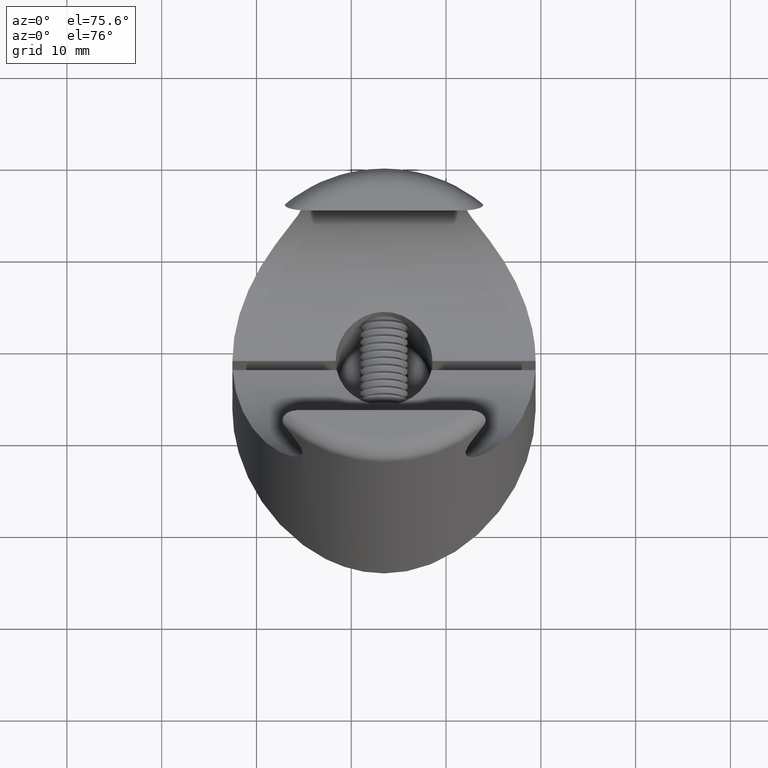
[diagram: clean part render]
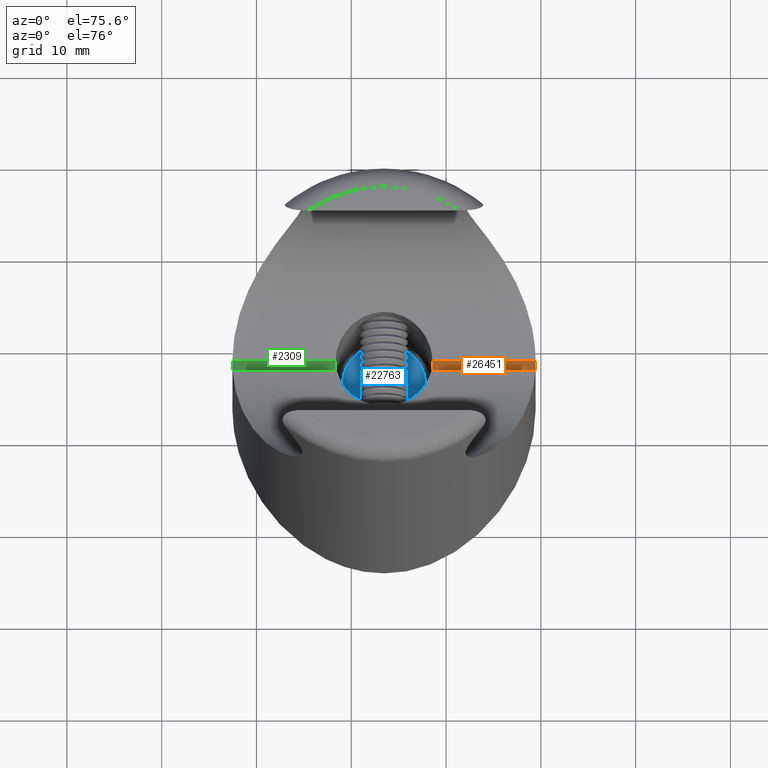
[diagram: same view with three faces highlighted in distinct colors, each labeled with its STEP entity id]
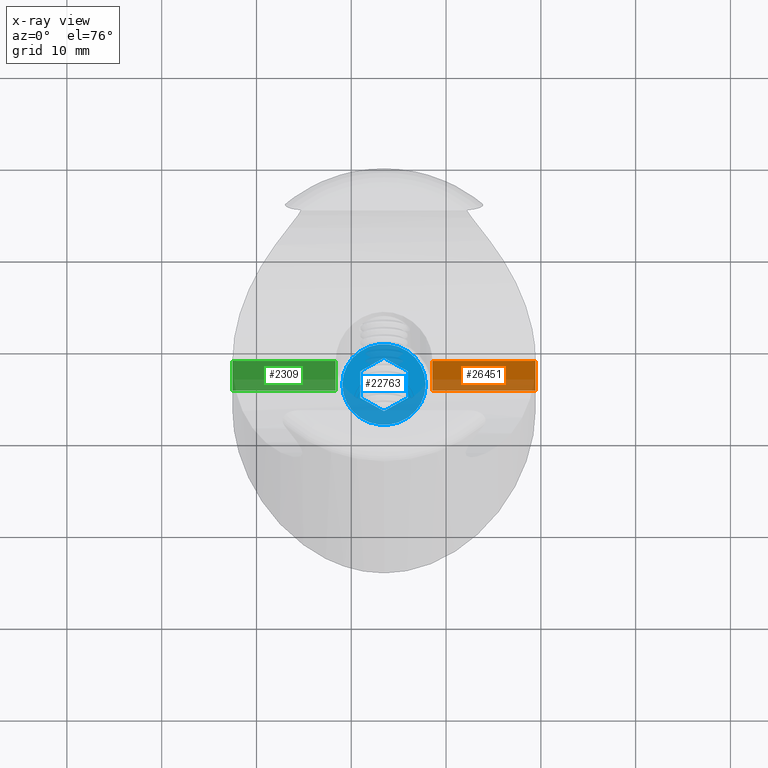
[diagram: x-ray of the same camera — body ghosted, the three highlighted faces saturated]
A machine part, auxiliary view with three faces highlighted in distinct colors.
The next image is the same camera in x-ray (body ghosted, the three faces saturated) — at least one of them is partly hidden behind the body in this view.
Their STEP definitions:

[orange] entity #26451 — the highlighted planar face has unit normal (0, 1, 0).
#6 = EDGE_CURVE ( 'NONE', #3753, #14614, #18441, .T. ) ;
#33 = LINE ( 'NONE', #17516, #10179 ) ;
#141 = ORIENTED_EDGE ( 'NONE', *, *, #8673, .F. ) ;
#1521 = CARTESIAN_POINT ( 'NONE',  ( 15.99999999999999645, -0.000000000000000000, 1.000000000000003997 ) ) ;
#1592 = CARTESIAN_POINT ( 'NONE',  ( 5.099999999999999645, 0.000000000000000000, 35.17686999952736926 ) ) ;
#3660 = PLANE ( 'NONE',  #5719 ) ;
#3753 = VERTEX_POINT ( 'NONE', #22838 ) ;
#5489 = DIRECTION ( 'NONE',  ( 0.000000000000000000, -0.000000000000000000, 1.000000000000000000 ) ) ;
#5719 = AXIS2_PLACEMENT_3D ( 'NONE', #9739, #25213, #5489 ) ;
#5809 = ORIENTED_EDGE ( 'NONE', *, *, #6, .T. ) ;
#7865 = DIRECTION ( 'NONE',  ( -1.000000000000000000, 0.000000000000000000, 0.000000000000000000 ) ) ;
#8673 = EDGE_CURVE ( 'NONE', #3753, #20892, #23262, .T. ) ;
#8890 = CARTESIAN_POINT ( 'NONE',  ( 16.00000000000000000, -1.653273178848926867E-15, 13.50000000000000000 ) ) ;
#9739 = CARTESIAN_POINT ( 'NONE',  ( -22.57528195423315864, 0.000000000000000000, 0.000000000000000000 ) ) ;
#10179 = VECTOR ( 'NONE', #11578, 1000.000000000000000 ) ;
#11256 = EDGE_CURVE ( 'NONE', #17349, #14614, #23586, .T. ) ;
#11578 = DIRECTION ( 'NONE',  ( -0.000000000000000000, -0.000000000000000000, -1.000000000000000000 ) ) ;
#13994 = CARTESIAN_POINT ( 'NONE',  ( 5.099999999999999645, 0.000000000000000000, 1.000000000000003997 ) ) ;
#14145 = VECTOR ( 'NONE', #7865, 1000.000000000000000 ) ;
#14614 = VERTEX_POINT ( 'NONE', #13994 ) ;
#17258 = ORIENTED_EDGE ( 'NONE', *, *, #18876, .F. ) ;
#17349 = VERTEX_POINT ( 'NONE', #23944 ) ;
#17499 = VECTOR ( 'NONE', #25328, 1000.000000000000000 ) ;
#17516 = CARTESIAN_POINT ( 'NONE',  ( 16.00000000000000000, 0.000000000000000000, 35.00000000000000000 ) ) ;
#18441 = LINE ( 'NONE', #1592, #25173 ) ;
#18876 = EDGE_CURVE ( 'NONE', #20892, #17349, #33, .T. ) ;
#18902 = DIRECTION ( 'NONE',  ( -0.000000000000000000, -0.000000000000000000, -1.000000000000000000 ) ) ;
#20892 = VERTEX_POINT ( 'NONE', #8890 ) ;
#20912 = CARTESIAN_POINT ( 'NONE',  ( -16.00000000000000000, -1.653273178848926867E-15, 13.50000000000000000 ) ) ;
#22838 = CARTESIAN_POINT ( 'NONE',  ( 5.099999999999999645, -1.653273178848926867E-15, 13.50000000000000000 ) ) ;
#23262 = LINE ( 'NONE', #20912, #17499 ) ;
#23586 = LINE ( 'NONE', #1521, #14145 ) ;
#23944 = CARTESIAN_POINT ( 'NONE',  ( 16.00000000000000000, 0.000000000000000000, 1.000000000000000888 ) ) ;
#24416 = EDGE_LOOP ( 'NONE', ( #141, #5809, #27735, #17258 ) ) ;
#24826 = FACE_OUTER_BOUND ( 'NONE', #24416, .T. ) ;
#25173 = VECTOR ( 'NONE', #18902, 1000.000000000000000 ) ;
#25213 = DIRECTION ( 'NONE',  ( -0.000000000000000000, 1.000000000000000000, 0.000000000000000000 ) ) ;
#25328 = DIRECTION ( 'NONE',  ( 1.000000000000000000, -0.000000000000000000, -0.000000000000000000 ) ) ;
#26451 = ADVANCED_FACE ( 'NONE', ( #24826 ), #3660, .F. ) ;
#27735 = ORIENTED_EDGE ( 'NONE', *, *, #11256, .F. ) ;

[blue] entity #22763 — the highlighted planar face has unit normal (0, 0, 1).
#403 = DIRECTION ( 'NONE',  ( 0.000000000000000000, 0.4999999999999986677, -0.8660254037844393737 ) ) ;
#854 = EDGE_CURVE ( 'NONE', #9620, #18089, #25799, .T. ) ;
#934 = CARTESIAN_POINT ( 'NONE',  ( 0.000000000000000000, -1.449149175665963796, 2.510000000000002007 ) ) ;
#1315 = CARTESIAN_POINT ( 'NONE',  ( -0.000000000000000000, -2.898298351331926703, 4.119968255444916849E-15 ) ) ;
#1348 = ORIENTED_EDGE ( 'NONE', *, *, #13102, .F. ) ;
#3104 = ORIENTED_EDGE ( 'NONE', *, *, #19167, .T. ) ;
#3443 = CARTESIAN_POINT ( 'NONE',  ( 0.000000000000000000, 2.898298351331914269, -4.119968255444916849E-15 ) ) ;
#3527 = CARTESIAN_POINT ( 'NONE',  ( 0.000000000000000000, -1.449149175665963796, 2.510000000000002007 ) ) ;
#3747 = DIRECTION ( 'NONE',  ( -0.000000000000000000, -0.5000000000000009992, -0.8660254037844380415 ) ) ;
#4084 = CARTESIAN_POINT ( 'NONE',  ( -0.000000000000000000, -1.449149175665970013, -2.509999999999997566 ) ) ;
#4346 = VECTOR ( 'NONE', #17593, 1000.000000000000227 ) ;
#4712 = ORIENTED_EDGE ( 'NONE', *, *, #26790, .F. ) ;
#5265 = DIRECTION ( 'NONE',  ( 0.000000000000000000, -0.5000000000000016653, -0.8660254037844377084 ) ) ;
#5276 = DIRECTION ( 'NONE',  ( 0.000000000000000000, 1.000000000000000000, -1.346696353449645192E-15 ) ) ;
#6291 = ORIENTED_EDGE ( 'NONE', *, *, #854, .F. ) ;
#6662 = EDGE_LOOP ( 'NONE', ( #16240, #3104 ) ) ;
#6829 = CIRCLE ( 'NONE', #16018, 4.400000000000000355 ) ;
#7099 = ORIENTED_EDGE ( 'NONE', *, *, #23076, .T. ) ;
#7414 = LINE ( 'NONE', #14359, #13475 ) ;
#8260 = DIRECTION ( 'NONE',  ( 0.000000000000000000, 0.000000000000000000, 1.000000000000000000 ) ) ;
#8362 = CARTESIAN_POINT ( 'NONE',  ( 0.000000000000000000, 0.000000000000000000, 4.400000000000000355 ) ) ;
#9102 = ORIENTED_EDGE ( 'NONE', *, *, #27167, .T. ) ;
#9620 = VERTEX_POINT ( 'NONE', #3527 ) ;
#9771 = VERTEX_POINT ( 'NONE', #4084 ) ;
#10618 = VECTOR ( 'NONE', #13674, 1000.000000000000000 ) ;
#11503 = CARTESIAN_POINT ( 'NONE',  ( 0.000000000000000000, 1.449149175665949363, -2.510000000000001119 ) ) ;
#12006 = CARTESIAN_POINT ( 'NONE',  ( 0.000000000000000000, 2.898298351331914269, -4.119968255444916849E-15 ) ) ;
#12025 = AXIS2_PLACEMENT_3D ( 'NONE', #24058, #19626, #13290 ) ;
#12442 = CARTESIAN_POINT ( 'NONE',  ( 0.000000000000000000, 5.755839955992559655E-16, -4.400000000000000355 ) ) ;
#12977 = DIRECTION ( 'NONE',  ( -1.000000000000000000, -0.000000000000000000, -0.000000000000000000 ) ) ;
#13102 = EDGE_CURVE ( 'NONE', #18060, #22949, #19453, .T. ) ;
#13287 = LINE ( 'NONE', #23747, #25783 ) ;
#13290 = DIRECTION ( 'NONE',  ( -0.000000000000000000, 0.000000000000000000, 1.000000000000000000 ) ) ;
#13475 = VECTOR ( 'NONE', #3747, 1000.000000000000000 ) ;
#13674 = DIRECTION ( 'NONE',  ( -0.000000000000000000, -1.000000000000000000, 1.197063425288573942E-15 ) ) ;
#14359 = CARTESIAN_POINT ( 'NONE',  ( 0.000000000000000000, -1.449149175665963796, 2.510000000000002007 ) ) ;
#15003 = CARTESIAN_POINT ( 'NONE',  ( 0.000000000000000000, 1.449149175665949363, -2.510000000000001119 ) ) ;
#15405 = VECTOR ( 'NONE', #5265, 1000.000000000000000 ) ;
#16018 = AXIS2_PLACEMENT_3D ( 'NONE', #19234, #12977, #8260 ) ;
#16240 = ORIENTED_EDGE ( 'NONE', *, *, #23218, .T. ) ;
#16689 = VERTEX_POINT ( 'NONE', #12442 ) ;
#17533 = FACE_OUTER_BOUND ( 'NONE', #6662, .T. ) ;
#17593 = DIRECTION ( 'NONE',  ( 0.000000000000000000, -0.4999999999999987232, 0.8660254037844392627 ) ) ;
#18051 = VECTOR ( 'NONE', #5276, 1000.000000000000000 ) ;
#18060 = VERTEX_POINT ( 'NONE', #12006 ) ;
#18089 = VERTEX_POINT ( 'NONE', #23979 ) ;
#19167 = EDGE_CURVE ( 'NONE', #16689, #27135, #6829, .T. ) ;
#19234 = CARTESIAN_POINT ( 'NONE',  ( 0.000000000000000000, 0.000000000000000000, 0.000000000000000000 ) ) ;
#19453 = LINE ( 'NONE', #26703, #15405 ) ;
#19626 = DIRECTION ( 'NONE',  ( -1.000000000000000000, 0.000000000000000000, -0.000000000000000000 ) ) ;
#21064 = EDGE_CURVE ( 'NONE', #18060, #18089, #21283, .T. ) ;
#21283 = LINE ( 'NONE', #3443, #4346 ) ;
#21511 = CARTESIAN_POINT ( 'NONE',  ( 0.000000000000000000, 0.000000000000000000, 0.000000000000000000 ) ) ;
#21699 = DIRECTION ( 'NONE',  ( -1.000000000000000000, -0.000000000000000000, -0.000000000000000000 ) ) ;
#22450 = LINE ( 'NONE', #15003, #10618 ) ;
#22763 = ADVANCED_FACE ( 'NONE', ( #24961, #17533 ), #26310, .T. ) ;
#22949 = VERTEX_POINT ( 'NONE', #11503 ) ;
#23076 = EDGE_CURVE ( 'NONE', #9620, #27808, #7414, .T. ) ;
#23218 = EDGE_CURVE ( 'NONE', #27135, #16689, #25607, .T. ) ;
#23232 = AXIS2_PLACEMENT_3D ( 'NONE', #21511, #21699, #23879 ) ;
#23747 = CARTESIAN_POINT ( 'NONE',  ( -0.000000000000000000, -2.898298351331926703, 4.119968255444916849E-15 ) ) ;
#23879 = DIRECTION ( 'NONE',  ( 0.000000000000000000, 0.000000000000000000, 1.000000000000000000 ) ) ;
#23979 = CARTESIAN_POINT ( 'NONE',  ( 0.000000000000000000, 1.449149175665957134, 2.509999999999998010 ) ) ;
#24058 = CARTESIAN_POINT ( 'NONE',  ( 0.000000000000000000, 0.000000000000000000, 0.000000000000000000 ) ) ;
#24792 = ORIENTED_EDGE ( 'NONE', *, *, #21064, .T. ) ;
#24844 = EDGE_LOOP ( 'NONE', ( #24792, #6291, #7099, #9102, #4712, #1348 ) ) ;
#24961 = FACE_BOUND ( 'NONE', #24844, .T. ) ;
#25607 = CIRCLE ( 'NONE', #23232, 4.400000000000000355 ) ;
#25783 = VECTOR ( 'NONE', #403, 1000.000000000000114 ) ;
#25799 = LINE ( 'NONE', #934, #18051 ) ;
#26310 = PLANE ( 'NONE',  #12025 ) ;
#26703 = CARTESIAN_POINT ( 'NONE',  ( 0.000000000000000000, 2.898298351331914269, -4.119968255444916849E-15 ) ) ;
#26790 = EDGE_CURVE ( 'NONE', #22949, #9771, #22450, .T. ) ;
#27135 = VERTEX_POINT ( 'NONE', #8362 ) ;
#27167 = EDGE_CURVE ( 'NONE', #27808, #9771, #13287, .T. ) ;
#27808 = VERTEX_POINT ( 'NONE', #1315 ) ;

[green] entity #2309 — the highlighted planar face has unit normal (0, 1, 0).
#1476 = ORIENTED_EDGE ( 'NONE', *, *, #4006, .T. ) ;
#1568 = VECTOR ( 'NONE', #3366, 1000.000000000000000 ) ;
#1803 = VERTEX_POINT ( 'NONE', #23585 ) ;
#2309 = ADVANCED_FACE ( 'NONE', ( #16987 ), #5375, .F. ) ;
#3050 = VECTOR ( 'NONE', #13669, 1000.000000000000000 ) ;
#3166 = CARTESIAN_POINT ( 'NONE',  ( -16.00000000000000000, 0.000000000000000000, 35.00000000000000000 ) ) ;
#3366 = DIRECTION ( 'NONE',  ( 1.000000000000000000, -0.000000000000000000, -0.000000000000000000 ) ) ;
#3685 = CARTESIAN_POINT ( 'NONE',  ( -5.099999999999999645, 0.000000000000000000, 35.17686999952736926 ) ) ;
#3951 = LINE ( 'NONE', #7661, #22216 ) ;
#3967 = DIRECTION ( 'NONE',  ( 0.000000000000000000, 0.000000000000000000, 1.000000000000000000 ) ) ;
#4006 = EDGE_CURVE ( 'NONE', #10658, #24525, #22333, .T. ) ;
#5278 = DIRECTION ( 'NONE',  ( -0.000000000000000000, 1.000000000000000000, 0.000000000000000000 ) ) ;
#5375 = PLANE ( 'NONE',  #22853 ) ;
#5471 = CARTESIAN_POINT ( 'NONE',  ( -22.57528195423315864, 0.000000000000000000, 0.000000000000000000 ) ) ;
#5757 = ORIENTED_EDGE ( 'NONE', *, *, #7563, .F. ) ;
#7326 = ORIENTED_EDGE ( 'NONE', *, *, #24352, .F. ) ;
#7432 = CARTESIAN_POINT ( 'NONE',  ( -5.099999999999999645, 0.000000000000000000, 1.000000000000000888 ) ) ;
#7563 = EDGE_CURVE ( 'NONE', #1803, #24525, #26912, .T. ) ;
#7661 = CARTESIAN_POINT ( 'NONE',  ( 15.99999999999999645, -0.000000000000000000, 1.000000000000003997 ) ) ;
#7932 = ORIENTED_EDGE ( 'NONE', *, *, #20269, .F. ) ;
#9532 = DIRECTION ( 'NONE',  ( 0.000000000000000000, -0.000000000000000000, 1.000000000000000000 ) ) ;
#9992 = CARTESIAN_POINT ( 'NONE',  ( -16.00000000000000000, -1.653273178848926867E-15, 13.50000000000000000 ) ) ;
#10658 = VERTEX_POINT ( 'NONE', #7432 ) ;
#13669 = DIRECTION ( 'NONE',  ( 0.000000000000000000, 0.000000000000000000, 1.000000000000000000 ) ) ;
#13960 = VERTEX_POINT ( 'NONE', #19388 ) ;
#16243 = LINE ( 'NONE', #3166, #3050 ) ;
#16592 = VECTOR ( 'NONE', #3967, 1000.000000000000000 ) ;
#16725 = DIRECTION ( 'NONE',  ( -1.000000000000000000, 0.000000000000000000, 0.000000000000000000 ) ) ;
#16987 = FACE_OUTER_BOUND ( 'NONE', #24194, .T. ) ;
#19388 = CARTESIAN_POINT ( 'NONE',  ( -16.00000000000000000, 0.000000000000000000, 1.000000000000003997 ) ) ;
#20269 = EDGE_CURVE ( 'NONE', #13960, #1803, #16243, .T. ) ;
#22216 = VECTOR ( 'NONE', #16725, 1000.000000000000000 ) ;
#22333 = LINE ( 'NONE', #3685, #16592 ) ;
#22853 = AXIS2_PLACEMENT_3D ( 'NONE', #5471, #5278, #9532 ) ;
#23510 = CARTESIAN_POINT ( 'NONE',  ( -5.099999999999999645, -1.653273178848926867E-15, 13.50000000000000000 ) ) ;
#23585 = CARTESIAN_POINT ( 'NONE',  ( -16.00000000000000000, -1.653273178848926867E-15, 13.50000000000000000 ) ) ;
#24194 = EDGE_LOOP ( 'NONE', ( #7326, #1476, #5757, #7932 ) ) ;
#24352 = EDGE_CURVE ( 'NONE', #10658, #13960, #3951, .T. ) ;
#24525 = VERTEX_POINT ( 'NONE', #23510 ) ;
#26912 = LINE ( 'NONE', #9992, #1568 ) ;